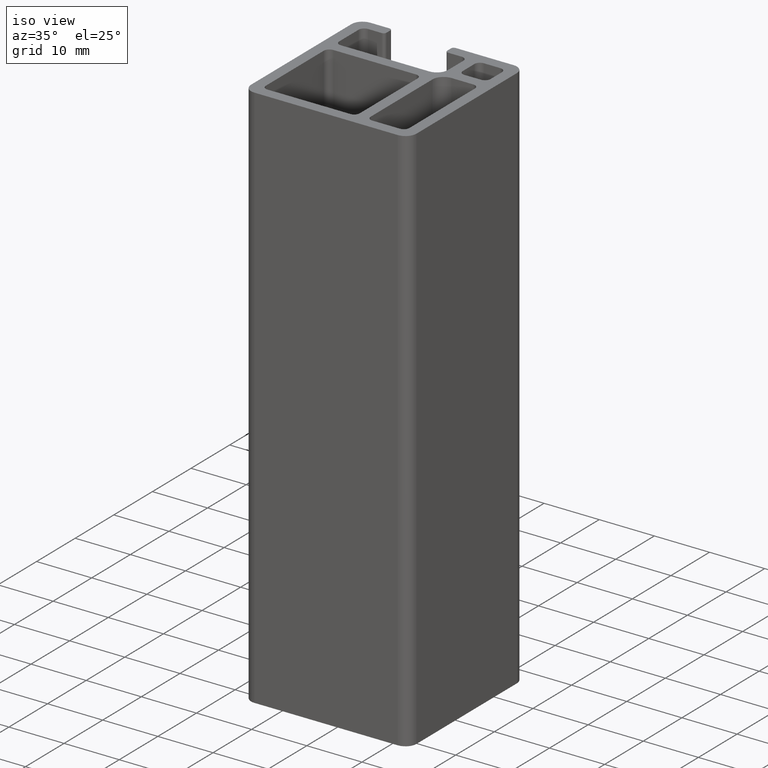
[diagram: clean part render]
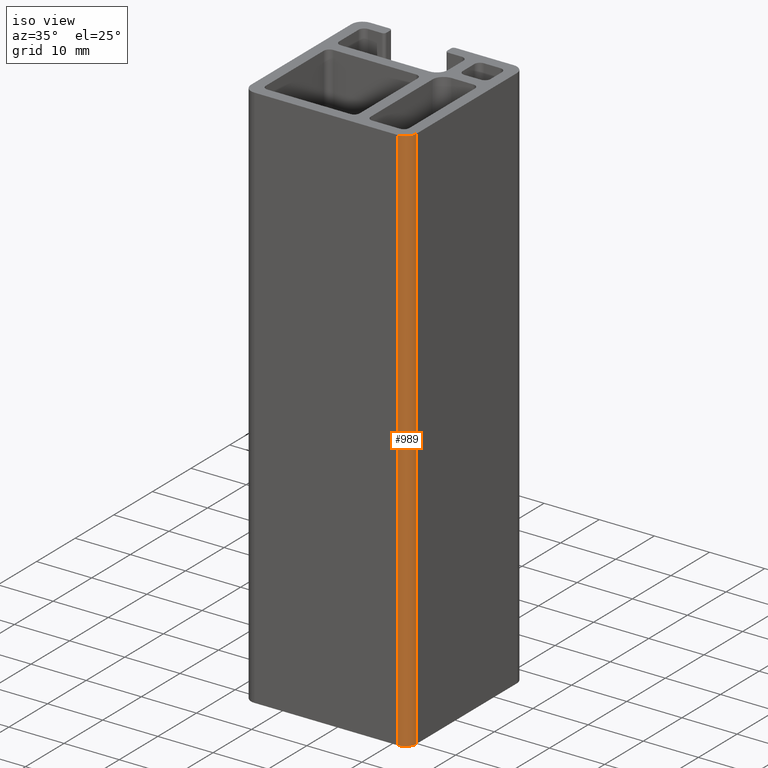
[diagram: same view with one face highlighted and labeled with its STEP entity id]
A machine part, iso view. The second image highlights one B-rep face of the part: STEP entity #989.
In plain terms, the highlighted cylindrical surface (edge-blend (fillet) strip) has radius 2 mm, axis along (0, 0, 1).
Its self-contained STEP definition (entity closure, byte-faithful):
#62=CIRCLE('',#1079,2.00000000847673);
#66=CIRCLE('',#1087,2.00000000847673);
#90=CYLINDRICAL_SURFACE('',#1086,2.00000000847673);
#137=FACE_OUTER_BOUND('',#190,.T.);
#190=EDGE_LOOP('',(#851,#852,#853,#854));
#288=LINE('',#1660,#384);
#289=LINE('',#1664,#385);
#384=VECTOR('',#1364,100.);
#385=VECTOR('',#1369,100.);
#474=VERTEX_POINT('',#1636);
#475=VERTEX_POINT('',#1638);
#482=VERTEX_POINT('',#1658);
#483=VERTEX_POINT('',#1662);
#610=EDGE_CURVE('',#474,#475,#62,.T.);
#621=EDGE_CURVE('',#474,#482,#288,.T.);
#622=EDGE_CURVE('',#482,#483,#66,.T.);
#623=EDGE_CURVE('',#475,#483,#289,.T.);
#851=ORIENTED_EDGE('',*,*,#622,.T.);
#852=ORIENTED_EDGE('',*,*,#623,.F.);
#853=ORIENTED_EDGE('',*,*,#610,.F.);
#854=ORIENTED_EDGE('',*,*,#621,.T.);
#989=ADVANCED_FACE('',(#137),#90,.T.);
#1079=AXIS2_PLACEMENT_3D('',#1639,#1343,#1344);
#1086=AXIS2_PLACEMENT_3D('',#1661,#1365,#1366);
#1087=AXIS2_PLACEMENT_3D('',#1663,#1367,#1368);
#1343=DIRECTION('center_axis',(0.,0.,-1.));
#1344=DIRECTION('ref_axis',(0.,1.,0.));
#1364=DIRECTION('',(0.,0.,1.));
#1365=DIRECTION('center_axis',(0.,0.,1.));
#1366=DIRECTION('ref_axis',(0.,1.,0.));
#1367=DIRECTION('center_axis',(0.,0.,-1.));
#1368=DIRECTION('ref_axis',(0.,1.,0.));
#1369=DIRECTION('',(0.,0.,1.));
#1636=CARTESIAN_POINT('',(15.,-12.9999999870676,0.));
#1638=CARTESIAN_POINT('',(12.9999999915233,-14.9999999955443,0.));
#1639=CARTESIAN_POINT('Origin',(12.9999999915233,-12.9999999870676,0.));
#1658=CARTESIAN_POINT('',(15.,-12.9999999870676,100.));
#1660=CARTESIAN_POINT('',(15.,-12.9999999870676,0.));
#1661=CARTESIAN_POINT('Origin',(12.9999999915233,-12.9999999870676,0.));
#1662=CARTESIAN_POINT('',(12.9999999915233,-14.9999999955443,100.));
#1663=CARTESIAN_POINT('Origin',(12.9999999915233,-12.9999999870676,100.));
#1664=CARTESIAN_POINT('',(12.9999999915233,-14.9999999955443,0.));